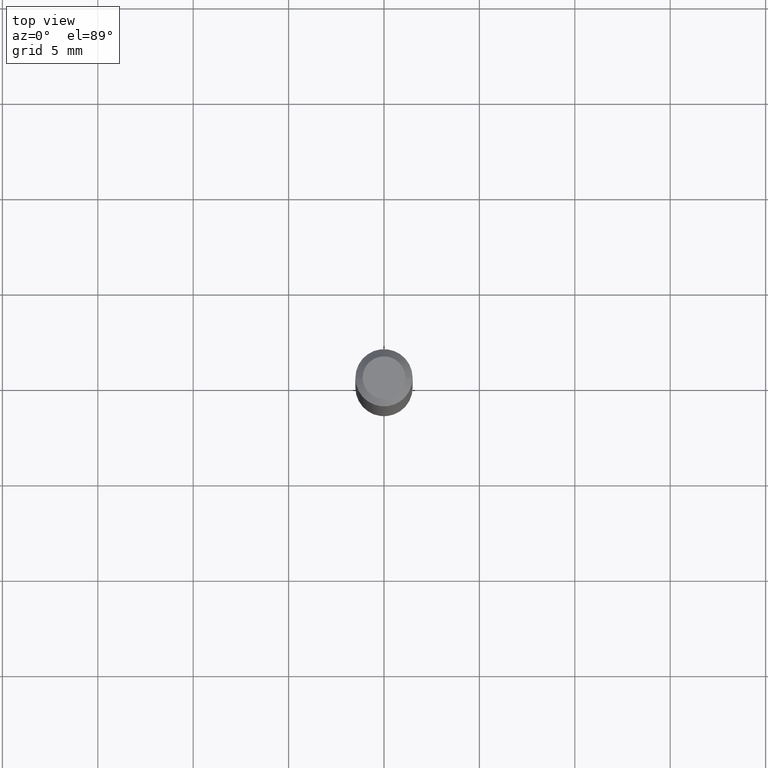
[diagram: clean part render]
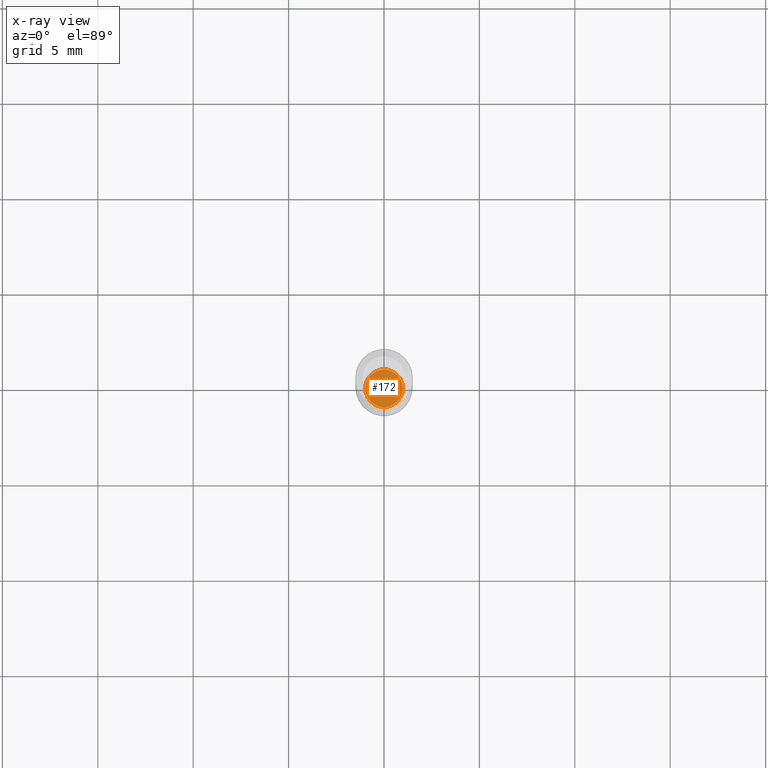
[diagram: x-ray — body ghosted, one internal face saturated and labeled with its STEP entity id]
A machine part, top view, then the same camera in x-ray: the body is ghosted and one INTERNAL B-rep face — a face not visible from any outside direction — is saturated and labeled: STEP entity #172.
In plain terms, the highlighted planar face has unit normal (-0, 0, 1).
Its self-contained STEP definition (entity closure, byte-faithful):
#9 = AXIS2_PLACEMENT_3D ( 'NONE', #150, #386, #209 ) ;
#13 = DIRECTION ( 'NONE',  ( -2.445468806185136597E-29, 3.491481338843145583E-15, 1.000000000000000000 ) ) ;
#91 = DIRECTION ( 'NONE',  ( -2.445468806185136597E-29, 3.491481338843145583E-15, 1.000000000000000000 ) ) ;
#131 = CARTESIAN_POINT ( 'NONE',  ( -0.03885000000000000259, -4.133839036013058638E-15, -1.263800000000000034 ) ) ;
#140 = EDGE_LOOP ( 'NONE', ( #257, #455 ) ) ;
#150 = CARTESIAN_POINT ( 'NONE',  ( 3.090583477256776013E-29, -4.412534116029967548E-15, -1.263800000000000034 ) ) ;
#172 = ADVANCED_FACE ( 'NONE', ( #348 ), #391, .F. ) ;
#189 = EDGE_CURVE ( 'NONE', #326, #423, #241, .T. ) ;
#194 = CARTESIAN_POINT ( 'NONE',  ( 3.090583477256776013E-29, -4.412534116029967548E-15, -1.263800000000000034 ) ) ;
#209 = DIRECTION ( 'NONE',  ( 1.000000000000000000, -6.982962677686265922E-15, 4.876176775795935793E-29 ) ) ;
#226 = AXIS2_PLACEMENT_3D ( 'NONE', #367, #91, #330 ) ;
#241 = CIRCLE ( 'NONE', #226, 0.03885000000000000259 ) ;
#242 = CIRCLE ( 'NONE', #465, 0.03885000000000000259 ) ;
#257 = ORIENTED_EDGE ( 'NONE', *, *, #189, .F. ) ;
#265 = EDGE_CURVE ( 'NONE', #423, #326, #242, .T. ) ;
#290 = CARTESIAN_POINT ( 'NONE',  ( 0.03885000000000000259, -4.683822216058078668E-15, -1.263800000000000034 ) ) ;
#326 = VERTEX_POINT ( 'NONE', #290 ) ;
#330 = DIRECTION ( 'NONE',  ( 1.000000000000000000, -6.982962677686256455E-15, 0.000000000000000000 ) ) ;
#348 = FACE_OUTER_BOUND ( 'NONE', #140, .T. ) ;
#367 = CARTESIAN_POINT ( 'NONE',  ( 3.090583477256776013E-29, -4.412534116029967548E-15, -1.263800000000000034 ) ) ;
#370 = DIRECTION ( 'NONE',  ( 1.000000000000000000, -6.982962677686256455E-15, 0.000000000000000000 ) ) ;
#386 = DIRECTION ( 'NONE',  ( -2.438088387897960049E-29, 3.491481338843145188E-15, 1.000000000000000000 ) ) ;
#391 = PLANE ( 'NONE',  #9 ) ;
#423 = VERTEX_POINT ( 'NONE', #131 ) ;
#455 = ORIENTED_EDGE ( 'NONE', *, *, #265, .F. ) ;
#465 = AXIS2_PLACEMENT_3D ( 'NONE', #194, #13, #370 ) ;